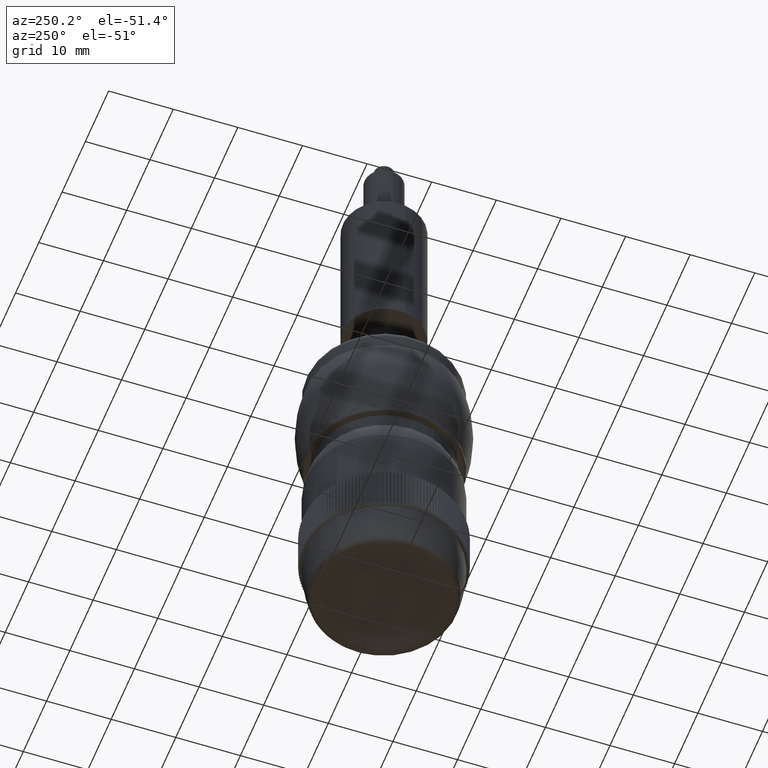
[diagram: clean part render]
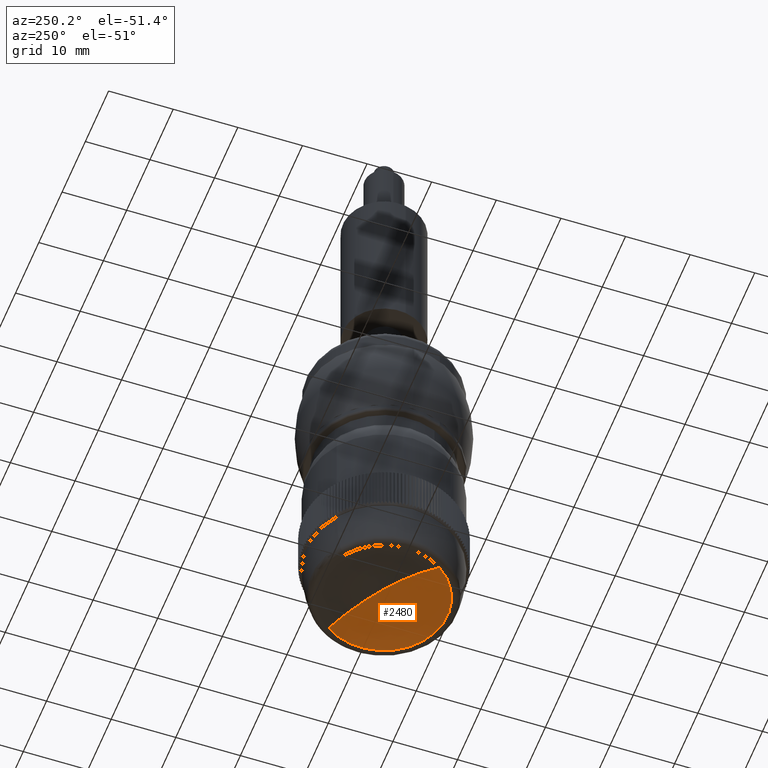
[diagram: same view with one face highlighted and labeled with its STEP entity id]
A machine part, auxiliary view. The second image highlights one B-rep face of the part: STEP entity #2480.
In plain terms, the highlighted spherical surface has radius 25 mm.
Its self-contained STEP definition (entity closure, byte-faithful):
#2382 = EDGE_CURVE ( 'NONE', #2383, #2402, #11407, .T. ) ;
#2383 = VERTEX_POINT ( 'NONE', #11402 ) ;
#2385 = EDGE_CURVE ( 'NONE', #2383, #2386, #11401, .T. ) ;
#2386 = VERTEX_POINT ( 'NONE', #11396 ) ;
#2399 = VERTEX_POINT ( 'NONE', #11500 ) ;
#2401 = EDGE_CURVE ( 'NONE', #2402, #2399, #11499, .T. ) ;
#2402 = VERTEX_POINT ( 'NONE', #11494 ) ;
#2460 = ORIENTED_EDGE ( 'NONE', *, *, #2461, .T. ) ;
#2461 = EDGE_CURVE ( 'NONE', #2399, #2386, #11658, .T. ) ;
#2480 = ADVANCED_FACE ( 'NONE', ( #11740 ), #11777, .F. ) ;
#2481 = EDGE_LOOP ( 'NONE', ( #2482, #2483, #2484, #2460 ) ) ;
#2482 = ORIENTED_EDGE ( 'NONE', *, *, #2385, .F. ) ;
#2483 = ORIENTED_EDGE ( 'NONE', *, *, #2382, .T. ) ;
#2484 = ORIENTED_EDGE ( 'NONE', *, *, #2401, .T. ) ;
#11396 = CARTESIAN_POINT ( 'NONE',  ( -0.4538189596862246500, -0.2303089217993619100, -2.626682936737502900 ) ) ;
#11397 = DIRECTION ( 'NONE',  ( 0.8167475668551643600, 0.5769951577233287700, 0.0000000000000000000 ) ) ;
#11398 = DIRECTION ( 'NONE',  ( 0.5769951577233286600, -0.8167475668551643600, -5.109148142267773900E-017 ) ) ;
#11399 = CARTESIAN_POINT ( 'NONE',  ( -0.1372700539044537600, -0.006681459373031536900, -3.531414657083926200 ) ) ;
#11400 = AXIS2_PLACEMENT_3D ( 'NONE', #11399, #11398, #11397 ) ;
#11401 = CIRCLE ( 'NONE', #11400, 0.9842519685039370400 ) ;
#11402 = CARTESIAN_POINT ( 'NONE',  ( -0.1372700539044535700, -0.006681459373031465800, -2.547162688579989600 ) ) ;
#11403 = DIRECTION ( 'NONE',  ( -0.8167475668551643600, -0.5769951577233286600, 0.0000000000000000000 ) ) ;
#11404 = DIRECTION ( 'NONE',  ( -0.5769951577233285400, 0.8167475668551643600, 5.109148142267772600E-017 ) ) ;
#11405 = CARTESIAN_POINT ( 'NONE',  ( -0.1372700539044537600, -0.006681459373031536900, -3.531414657083926200 ) ) ;
#11406 = AXIS2_PLACEMENT_3D ( 'NONE', #11405, #11404, #11403 ) ;
#11407 = CIRCLE ( 'NONE', #11406, 0.9842519685039370400 ) ;
#11494 = CARTESIAN_POINT ( 'NONE',  ( 0.1792788518773171800, 0.2169460030532987200, -2.626682936737502900 ) ) ;
#11495 = DIRECTION ( 'NONE',  ( -0.5769951577233285400, 0.8167475668551643600, 0.0000000000000000000 ) ) ;
#11496 = DIRECTION ( 'NONE',  ( -1.392889126570072000E-016, -3.584650618268070600E-017, -1.000000000000000000 ) ) ;
#11497 = CARTESIAN_POINT ( 'NONE',  ( -0.1372700539044537600, -0.006681459373031536900, -2.626682936737502900 ) ) ;
#11498 = AXIS2_PLACEMENT_3D ( 'NONE', #11497, #11496, #11495 ) ;
#11499 = CIRCLE ( 'NONE', #11498, 0.3875725115418743300 ) ;
#11500 = CARTESIAN_POINT ( 'NONE',  ( 0.08635740852187646900, -0.3232303651548023600, -2.626682936737502900 ) ) ;
#11654 = DIRECTION ( 'NONE',  ( -0.5769951577233285400, 0.8167475668551643600, 0.0000000000000000000 ) ) ;
#11655 = DIRECTION ( 'NONE',  ( -1.392889126570072000E-016, -3.584650618268070600E-017, -1.000000000000000000 ) ) ;
#11656 = CARTESIAN_POINT ( 'NONE',  ( -0.1372700539044537600, -0.006681459373031536900, -2.626682936737502900 ) ) ;
#11657 = AXIS2_PLACEMENT_3D ( 'NONE', #11656, #11655, #11654 ) ;
#11658 = CIRCLE ( 'NONE', #11657, 0.3875725115418743300 ) ;
#11740 = FACE_OUTER_BOUND ( 'NONE', #2481, .T. ) ;
#11774 = DIRECTION ( 'NONE',  ( 0.8167475668551643600, 0.5769951577233285400, 0.0000000000000000000 ) ) ;
#11775 = DIRECTION ( 'NONE',  ( 0.5769951577233285400, -0.8167475668551643600, -5.109148142267773200E-017 ) ) ;
#11776 = AXIS2_PLACEMENT_3D ( 'NONE', #11778, #11775, #11774 ) ;
#11777 = SPHERICAL_SURFACE ( 'NONE', #11776, 0.9842519685039370400 ) ;
#11778 = CARTESIAN_POINT ( 'NONE',  ( -0.1372700539044537600, -0.006681459373031536900, -3.531414657083926200 ) ) ;